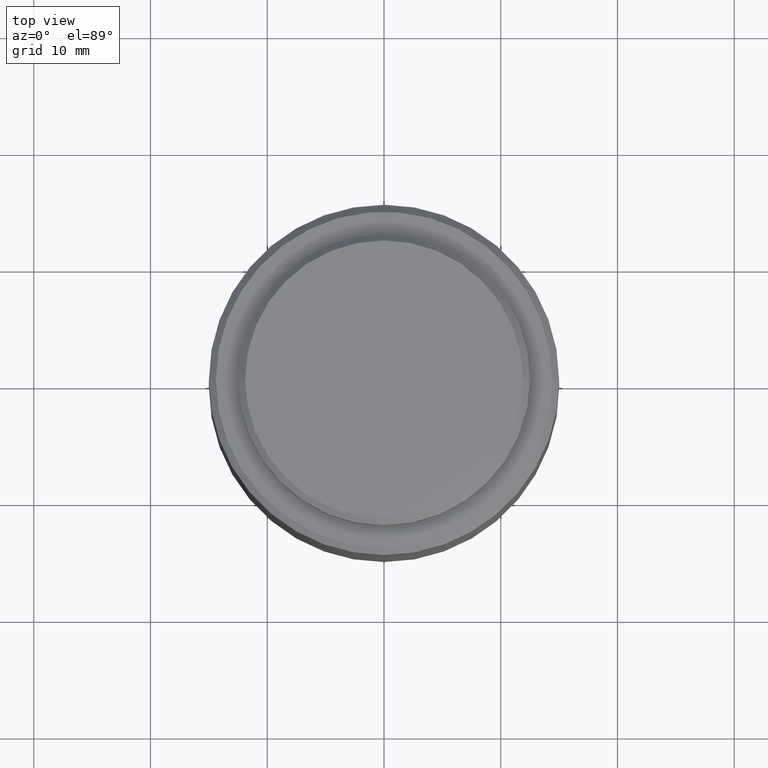
[diagram: clean part render]
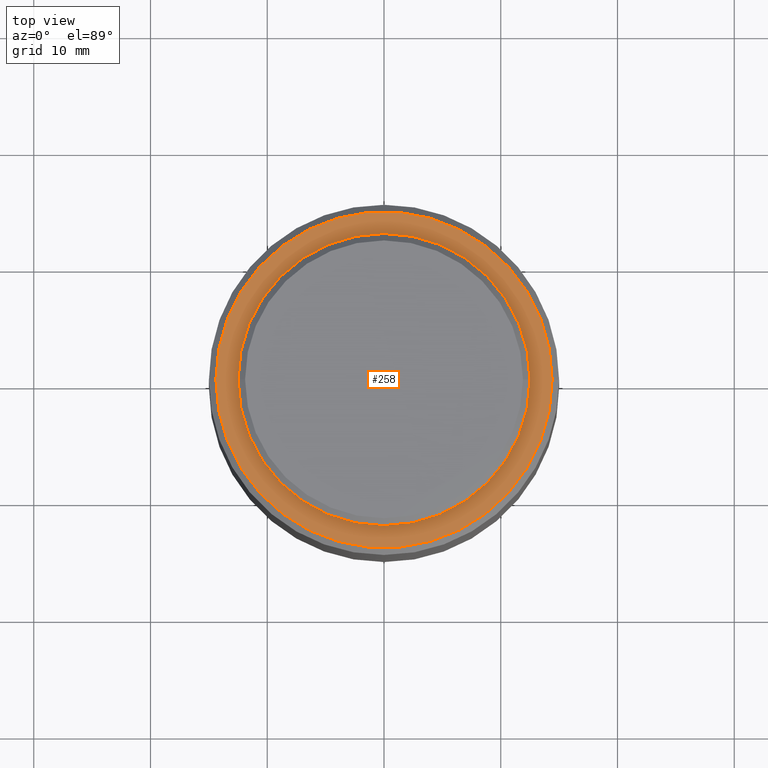
[diagram: same view with one face highlighted and labeled with its STEP entity id]
A machine part, top view. The second image highlights one B-rep face of the part: STEP entity #258.
In plain terms, the highlighted planar face has unit normal (0, 0, 1).
Its self-contained STEP definition (entity closure, byte-faithful):
#3 = EDGE_CURVE ( 'NONE', #270, #249, #449, .T. ) ;
#46 = CARTESIAN_POINT ( 'NONE',  ( -12.50000000000000000, 0.0000000000000000000, 43.89999999999999100 ) ) ;
#50 = AXIS2_PLACEMENT_3D ( 'NONE', #234, #483, #313 ) ;
#51 = EDGE_CURVE ( 'NONE', #295, #237, #427, .T. ) ;
#66 = ORIENTED_EDGE ( 'NONE', *, *, #77, .T. ) ;
#77 = EDGE_CURVE ( 'NONE', #237, #295, #238, .T. ) ;
#91 = ORIENTED_EDGE ( 'NONE', *, *, #136, .F. ) ;
#92 = CARTESIAN_POINT ( 'NONE',  ( 0.0000000000000000000, 0.0000000000000000000, 43.89999999999999100 ) ) ;
#102 = AXIS2_PLACEMENT_3D ( 'NONE', #522, #349, #195 ) ;
#129 = CARTESIAN_POINT ( 'NONE',  ( 12.50000000000000000, 1.530808498934191500E-015, 43.89999999999999100 ) ) ;
#136 = EDGE_CURVE ( 'NONE', #249, #270, #344, .T. ) ;
#147 = DIRECTION ( 'NONE',  ( 0.0000000000000000000, 0.0000000000000000000, 1.000000000000000000 ) ) ;
#194 = FACE_OUTER_BOUND ( 'NONE', #205, .T. ) ;
#195 = DIRECTION ( 'NONE',  ( 1.000000000000000000, 0.0000000000000000000, 0.0000000000000000000 ) ) ;
#205 = EDGE_LOOP ( 'NONE', ( #66, #492 ) ) ;
#233 = DIRECTION ( 'NONE',  ( 1.000000000000000000, 0.0000000000000000000, 0.0000000000000000000 ) ) ;
#234 = CARTESIAN_POINT ( 'NONE',  ( 0.0000000000000000000, 0.0000000000000000000, 43.89999999999999100 ) ) ;
#237 = VERTEX_POINT ( 'NONE', #455 ) ;
#238 = CIRCLE ( 'NONE', #387, 14.40000000000000400 ) ;
#249 = VERTEX_POINT ( 'NONE', #46 ) ;
#258 = ADVANCED_FACE ( 'NONE', ( #194, #296 ), #369, .T. ) ;
#270 = VERTEX_POINT ( 'NONE', #129 ) ;
#271 = CARTESIAN_POINT ( 'NONE',  ( 0.0000000000000000000, 0.0000000000000000000, 43.89999999999999100 ) ) ;
#277 = ORIENTED_EDGE ( 'NONE', *, *, #3, .F. ) ;
#295 = VERTEX_POINT ( 'NONE', #527 ) ;
#296 = FACE_BOUND ( 'NONE', #510, .T. ) ;
#313 = DIRECTION ( 'NONE',  ( 1.000000000000000000, 0.0000000000000000000, 0.0000000000000000000 ) ) ;
#323 = AXIS2_PLACEMENT_3D ( 'NONE', #92, #415, #403 ) ;
#344 = CIRCLE ( 'NONE', #50, 12.50000000000000000 ) ;
#349 = DIRECTION ( 'NONE',  ( 0.0000000000000000000, 0.0000000000000000000, 1.000000000000000000 ) ) ;
#353 = AXIS2_PLACEMENT_3D ( 'NONE', #431, #147, #389 ) ;
#369 = PLANE ( 'NONE',  #323 ) ;
#387 = AXIS2_PLACEMENT_3D ( 'NONE', #271, #523, #233 ) ;
#389 = DIRECTION ( 'NONE',  ( 1.000000000000000000, 0.0000000000000000000, 0.0000000000000000000 ) ) ;
#403 = DIRECTION ( 'NONE',  ( 1.000000000000000000, 0.0000000000000000000, -0.0000000000000000000 ) ) ;
#415 = DIRECTION ( 'NONE',  ( 0.0000000000000000000, 0.0000000000000000000, 1.000000000000000000 ) ) ;
#427 = CIRCLE ( 'NONE', #353, 14.40000000000000400 ) ;
#431 = CARTESIAN_POINT ( 'NONE',  ( 0.0000000000000000000, 0.0000000000000000000, 43.89999999999999100 ) ) ;
#449 = CIRCLE ( 'NONE', #102, 12.50000000000000000 ) ;
#455 = CARTESIAN_POINT ( 'NONE',  ( -14.40000000000000400, 0.0000000000000000000, 43.89999999999999100 ) ) ;
#483 = DIRECTION ( 'NONE',  ( 0.0000000000000000000, 0.0000000000000000000, 1.000000000000000000 ) ) ;
#492 = ORIENTED_EDGE ( 'NONE', *, *, #51, .T. ) ;
#510 = EDGE_LOOP ( 'NONE', ( #91, #277 ) ) ;
#522 = CARTESIAN_POINT ( 'NONE',  ( 0.0000000000000000000, 0.0000000000000000000, 43.89999999999999100 ) ) ;
#523 = DIRECTION ( 'NONE',  ( 0.0000000000000000000, 0.0000000000000000000, 1.000000000000000000 ) ) ;
#527 = CARTESIAN_POINT ( 'NONE',  ( 14.40000000000000400, 1.800230794746609500E-015, 43.89999999999999100 ) ) ;